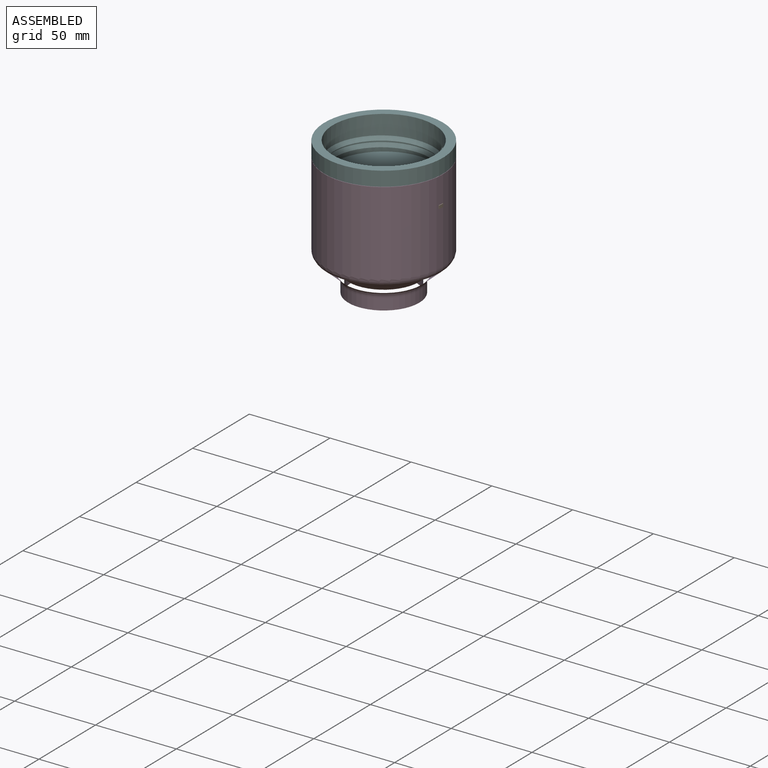
[diagram: assembled view]
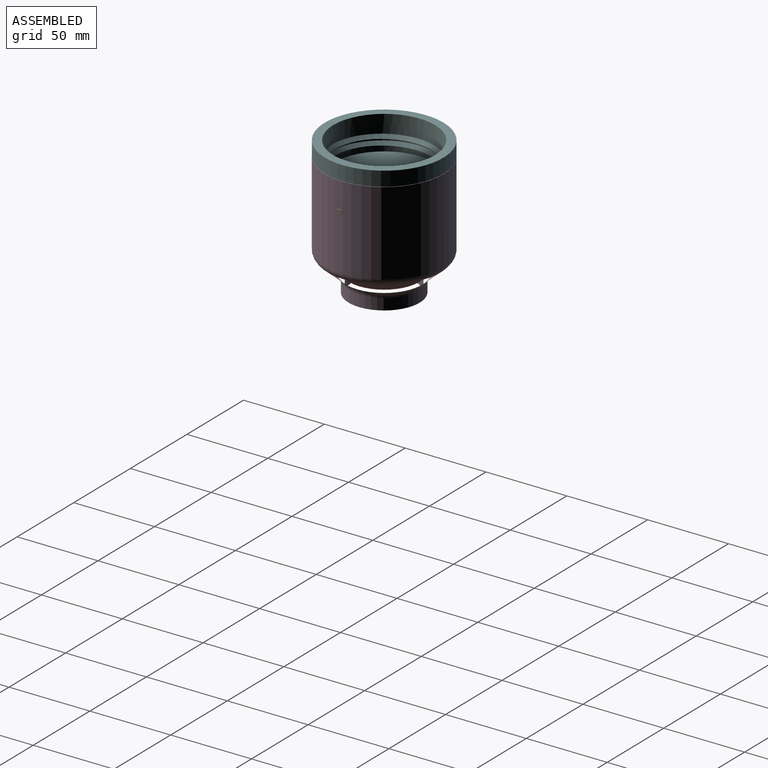
[diagram: assembled view, second angle]
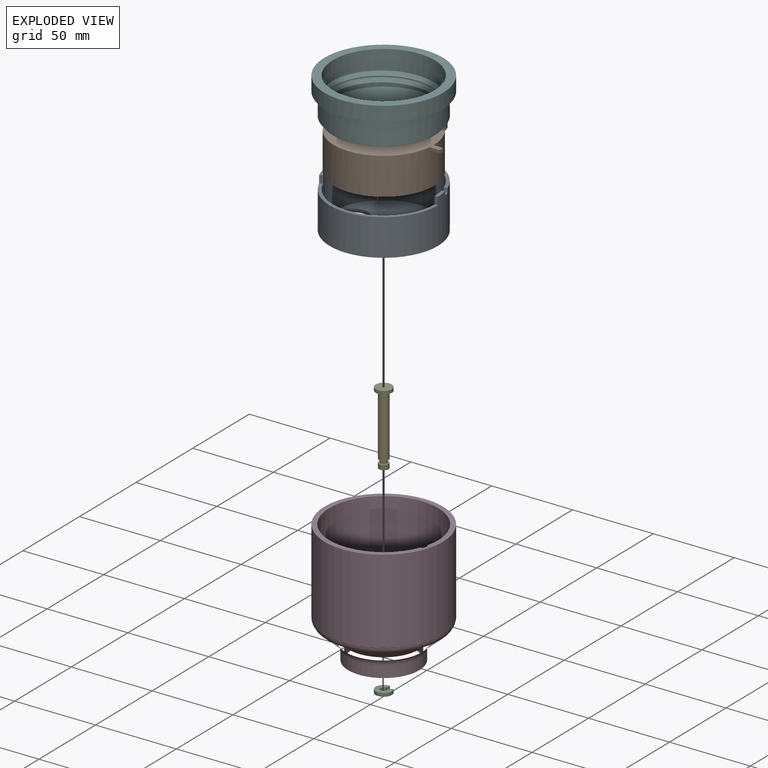
[diagram: exploded view]
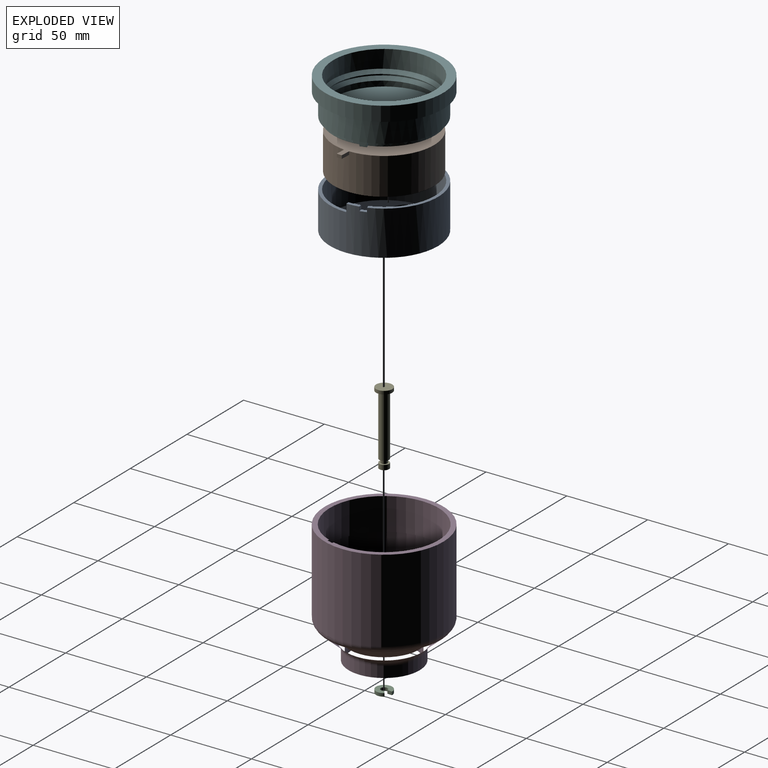
[diagram: exploded view, second angle]
ASSEMBLY  parts=6 mates=5
PART A: 18 faces, bbox 67x67x27.5 mm
  f0: cylinder r=31.5mm len=63mm, axis (0,0,-1), area 4613.4mm2, adj f1,f2,f5,f6,f9,f10,f11,f12
  f1: plane 7.54x2.81mm, normal (0,0,1), area 14.7mm2, adj f0,f3,f9,f15
  f2: plane 13.09x4.5mm, normal (0,0,1), area 26.1mm2, adj f0,f3,f12,f16
  f3: cylinder r=33.5mm len=67mm, axis (0,0,-1), area 5327.3mm2, adj f1,f2,f4,f5,f9,f10,f11,f12
  f4: plane 67x67mm, normal (0,0,-1), area 3181.3mm2, adj f3,f7,f8
  f5: plane 64.73x29.66mm, normal (0,0,1), area 173.6mm2, adj f0,f3,f10,f13
  f6: plane 63x63mm, normal (0,0,1), area 2772.9mm2, adj f0,f7,f8
  f7: cylinder r=3.1mm len=6.2mm, axis (0,0,-1), area 39mm2, adj f4,f6
  f8: cylinder r=10mm len=20mm, axis (0,0,1), area 125.7mm2, adj f4,f6
  f9: plane 2.5x1.95mm, normal (0.22,-0.97,0), area 5mm2, adj f0,f1,f3,f11
  f10: plane 2.5x1.88mm, normal (-0.34,0.94,0), area 5mm2, adj f0,f3,f5,f11
  f11: plane 4.37x3.04mm, normal (0,0,1), area 7.9mm2, adj f0,f3,f9,f10
  f12: plane 2.5x2mm, normal (0,-1,0), area 5mm2, adj f0,f2,f3,f14
  f13: plane 2.5x1.99mm, normal (0.12,0.99,0), area 5mm2, adj f0,f3,f5,f14
  f14: plane 4.08x2.23mm, normal (0,0,1), area 7.9mm2, adj f0,f3,f12,f13
  f15: plane 4.8x2mm, normal (0,1,0), area 9.6mm2, adj f0,f1,f3,f17
  f16: plane 4.8x1.84mm, normal (-0.39,0.92,0), area 9.6mm2, adj f0,f2,f3,f17
  f17: plane 64.34x33.5mm, normal (0,0,1), area 178.1mm2, adj f0,f3,f15,f16
PART B: 9 faces, bbox 68x62x22.9 mm
  f0: cylinder r=31mm len=62mm, axis (0,0,-1), area 4448.1mm2, adj f2,f3,f4,f6,f7
  f1: cylinder r=10mm len=22.87mm, axis (0,0,-1), area 1437mm2, adj f2,f3
  f2: plane 68x62mm, normal (0,0,1), area 2695.2mm2, adj f0,f1,f4,f5,f6,f8
  f3: plane 62x62mm, normal (0,0,-1), area 2675.7mm2, adj f0,f1,f8
  f4: plane 6x2mm, normal (-0.05,-1,0), area 12mm2, adj f0,f2,f5,f7
  f5: cylinder r=37mm len=3.24mm, axis (0,0,1), area 6.5mm2, adj f2,f4,f6,f7
  f6: plane 6x2mm, normal (0.05,1,0), area 12mm2, adj f0,f2,f5,f7
  f7: plane 6.17x3.55mm, normal (0,0,-1), area 19.5mm2, adj f0,f4,f5,f6
  f8: cylinder r=3.05mm len=22.87mm, axis (0,0,-1), area 438.3mm2, adj f2,f3
PART C: 6 faces, bbox 10x9.8x2 mm
  f0: plane 2.76x2mm, normal (-0.95,0.31,0), area 5.8mm2, adj f1,f3,f4,f5
  f1: cylinder r=2.1mm len=4.2mm, axis (0,0,-1), area 22.7mm2, adj f0,f2,f4,f5
  f2: plane 2.46x2mm, normal (0.85,0.53,0), area 5.8mm2, adj f1,f3,f4,f5
  f3: cylinder r=5mm len=10mm, axis (0,0,-1), area 54.1mm2, adj f0,f2,f4,f5
  f4: plane 10x9.75mm, normal (0,0,1), area 55.7mm2, adj f0,f1,f2,f3
  f5: plane 10x9.75mm, normal (0,0,-1), area 55.7mm2, adj f0,f1,f2,f3
PART D: 53 faces, bbox 79.4x79.4x75.8 mm
  f0: cylinder r=34.7mm len=69.4mm, axis (0,0,1), area 6624.8mm2, adj f3,f13,f25,f26,f28,f29,f30,f32
  f1: plane 29.19x4.23mm, normal (0,0,1), area 88.7mm2, adj f14,f19,f21,f29,f30,f32,f47,f48
  f2: plane 27.08x17.73mm, normal (0,0,1), area 88.7mm2, adj f15,f16,f21,f35,f36,f38,f51,f52
  f3: torus R=29.7mm, axis (0,0,1), area 867.8mm2, adj f0,f12,f31,f33,f34,f37,f39,f40
  f4: cylinder r=36.7mm len=73.4mm, axis (0,0,1), area 11906.6mm2, adj f5,f13
  f5: torus R=31.7mm, axis (0,0,1), area 969mm2, adj f4,f6
  f6: cone r=34.98mm half-angle=48.9deg, axis (0,0,1), area 2756.2mm2, adj f5,f7
  f7: torus R=27mm, axis (0,0,1), area 606mm2, adj f6,f8
  f8: cylinder r=22mm len=44mm, axis (0,0,1), area 942mm2, adj f7,f9
  f9: plane 44x44mm, normal (0,0,-1), area 263.9mm2, adj f8,f10
  f10: cylinder r=20mm len=40mm, axis (0,0,1), area 970.7mm2, adj f9,f11
  f11: torus R=25mm, axis (0,0,1), area 552.4mm2, adj f10,f12
  f12: cone r=32.98mm half-angle=48.9deg, axis (0,0,1), area 2568.4mm2, adj f3,f11
  f13: plane 73.4x73.4mm, normal (0,0,1), area 659.6mm2, adj f0,f4,f26,f27,f28
  f14: plane 28.19x10.09mm, normal (-1,0,0), area 281.8mm2, adj f1,f20,f29,f31,f33,f47
  f15: plane 24.38x14.07mm, normal (-0.5,0.87,0), area 281.4mm2, adj f2,f20,f38,f39,f40,f51
  f16: plane 24.42x14.1mm, normal (0.5,-0.87,0), area 281.8mm2, adj f2,f20,f35,f37,f39,f52
  f17: plane 24.38x14.07mm, normal (-0.5,-0.87,0), area 281.4mm2, adj f20,f23,f44,f45,f46,f49
  f18: plane 24.42x14.1mm, normal (0.5,0.87,0), area 281.8mm2, adj f20,f23,f41,f43,f45,f50
  f19: plane 28.15x10.09mm, normal (1,0,0), area 281.4mm2, adj f1,f20,f32,f33,f34,f48
  f20: plane 58.62x50.85mm, normal (0,0,-1), area 309.9mm2, adj f14,f15,f16,f17,f18,f19,f21,f22
  f21: cylinder r=5mm len=11mm, axis (0,0,1), area 214.4mm2, adj f1,f2,f20,f23,f24,f47,f48,f49
  f22: cylinder r=3mm len=11mm, axis (0,0,1), area 207.3mm2, adj f20,f24
  f23: plane 27.04x17.74mm, normal (0,0,1), area 88.7mm2, adj f17,f18,f21,f41,f42,f44,f49,f50
  f24: plane 10x10mm, normal (0,0,1), area 50.3mm2, adj f21,f22
  f25: plane 69.4x69.4mm, normal (0,0,-1), area 211mm2, adj f0,f26,f27,f28
  f26: plane 20x0.93mm, normal (0.36,0.93,0), area 20mm2, adj f0,f13,f25,f27
  f27: cylinder r=33.7mm len=67.4mm, axis (0,0,1), area 4158.4mm2, adj f13,f25,f26,f28
  f28: plane 20x0.97mm, normal (-0.25,-0.97,0), area 20mm2, adj f0,f13,f25,f27
  f29: cylinder r=1mm len=9.72mm, axis (0,0,1), area 15mm2, adj f0,f1,f14,f30,f31
  f30: torus R=33.7mm, axis (0,0,1), area 6.5mm2, adj f0,f1,f29,f32
  f31: bspline ~3.34x1.96mm, area 3.7mm2, adj f3,f14,f29,f33
  f32: cylinder r=1mm len=9.72mm, axis (0,0,1), area 14.9mm2, adj f0,f1,f19,f30,f34
  f33: torus R=32.99mm, axis (0,0,1), area 8.1mm2, adj f3,f14,f19,f20,f31,f34
  f34: bspline ~3.86x1.95mm, area 3.7mm2, adj f3,f19,f32,f33
  f35: cylinder r=1mm len=9.72mm, axis (0,0,1), area 15mm2, adj f0,f2,f16,f36,f37
  f36: torus R=33.7mm, axis (0,0,1), area 6.5mm2, adj f0,f2,f35,f38
  f37: bspline ~3.87x1.87mm, area 3.7mm2, adj f3,f16,f35,f39
  f38: cylinder r=1mm len=9.72mm, axis (0,0,1), area 14.9mm2, adj f0,f2,f15,f36,f40
  f39: torus R=32.99mm, axis (0,0,1), area 8.1mm2, adj f3,f15,f16,f20,f37,f40
  f40: bspline ~3.86x2.16mm, area 3.7mm2, adj f3,f15,f38,f39
  f41: cylinder r=1mm len=9.72mm, axis (0,0,1), area 15mm2, adj f0,f18,f23,f42,f43
  f42: torus R=33.7mm, axis (0,0,1), area 6.5mm2, adj f0,f23,f41,f44
  f43: bspline ~3.34x2.16mm, area 3.7mm2, adj f3,f18,f41,f45
  f44: cylinder r=1mm len=9.72mm, axis (0,0,1), area 14.9mm2, adj f0,f17,f23,f42,f46
  f45: torus R=32.99mm, axis (0,0,1), area 8.1mm2, adj f3,f17,f18,f20,f43,f46
  f46: bspline ~3.86x1.87mm, area 3.7mm2, adj f3,f17,f44,f45
  f47: cylinder r=1mm len=10mm, axis (0,0,1), area 11.2mm2, adj f1,f14,f20,f21
  f48: cylinder r=1mm len=10mm, axis (0,0,1), area 11.4mm2, adj f1,f19,f20,f21
  f49: cylinder r=1mm len=10mm, axis (0,0,1), area 11.4mm2, adj f17,f20,f21,f23
  f50: cylinder r=1mm len=10mm, axis (0,0,1), area 11.2mm2, adj f18,f20,f21,f23
  f51: cylinder r=1mm len=10mm, axis (0,0,1), area 11.4mm2, adj f2,f15,f20,f21
  f52: cylinder r=1mm len=10mm, axis (0,0,1), area 11.2mm2, adj f2,f16,f20,f21
PART E: 9 faces, bbox 10x10x45.3 mm
  f0: cylinder r=5mm len=10mm, axis (0,0,-1), area 62.8mm2, adj f1,f2
  f1: plane 10x10mm, normal (0,0,1), area 78.5mm2, adj f0
  f2: plane 10x10mm, normal (0,0,-1), area 50.3mm2, adj f0,f3
  f3: cylinder r=3mm len=38.1mm, axis (0,0,1), area 718.2mm2, adj f2,f4
  f4: plane 6x6mm, normal (0,0,-1), area 15.7mm2, adj f3,f5
  f5: cylinder r=2mm len=4mm, axis (0,0,1), area 27.6mm2, adj f4,f8
  f6: cylinder r=3mm len=6mm, axis (0,0,1), area 56.5mm2, adj f7,f8
  f7: plane 6x6mm, normal (0,0,-1), area 28.3mm2, adj f6
  f8: plane 6x6mm, normal (0,0,1), area 15.7mm2, adj f5,f6
PART F: 29 faces, bbox 73.4x73.4x25.2 mm
  f0: plane 63.04x63.03mm, normal (0,0,-1), area 2774.8mm2, adj f3,f13,f15,f19,f25,f27
  f1: cylinder r=33.5mm len=67mm, axis (0,0,-1), area 2903.8mm2, adj f16,f17,f18,f20,f21,f22,f24,f26
  f2: plane 63x63mm, normal (0,0,1), area 2724.5mm2, adj f4,f6,f13
  f3: cylinder r=3mm len=6mm, axis (0,0,-1), area 41.5mm2, adj f0,f5
  f4: cylinder r=5mm len=10mm, axis (0,0,1), area 62.8mm2, adj f2,f5
  f5: plane 10x10mm, normal (0,0,1), area 50.3mm2, adj f3,f4
  f6: cylinder r=31.5mm len=63mm, axis (0,0,-1), area 660.8mm2, adj f2,f7,f10,f11,f12
  f7: cylinder r=31.5mm len=63mm, axis (0,0,-1), area 312.4mm2, adj f6,f8,f11,f12
  f8: cylinder r=31.5mm len=63mm, axis (0,0,-1), area 2152.6mm2, adj f7,f9,f11,f14
  f9: plane 2.17x1.56mm, normal (0,1,0), area 1.7mm2, adj f8,f11,f12
  f10: plane 2.18x1.27mm, normal (-0.59,0.81,0), area 1.7mm2, adj f6,f11,f12
  f11: bspline ~72.75x63mm, area 1237.4mm2, adj f6,f7,f8,f9,f10,f12
  f12: bspline ~72.75x63mm, area 722.8mm2, adj f6,f7,f9,f10,f11
  f13: cylinder r=10mm len=20mm, axis (0,0,1), area 263.9mm2, adj f0,f2
  f14: plane 73.4x73.4mm, normal (0,0,1), area 1114.1mm2, adj f8,f23
  f15: cylinder r=31.5mm len=3.23mm, axis (0,0,1), area 0mm2, adj f0,f17,f18
  f16: plane 2.5x1.76mm, normal (0.88,0.47,0), area 5mm2, adj f1,f18,f27,f28
  f17: plane 2.5x1.64mm, normal (-0.82,-0.57,0), area 5mm2, adj f1,f15,f18,f25,f26
  f18: plane 4.38x3.75mm, normal (0,0,-1), area 7.8mm2, adj f1,f15,f16,f17
  f19: cylinder r=31.5mm len=2.97mm, axis (0,0,1), area 0mm2, adj f0,f20,f22
  f20: plane 2.5x1.49mm, normal (-0.67,-0.74,0), area 5mm2, adj f1,f19,f22,f25,f26
  f21: plane 2.5x1.64mm, normal (0.57,0.82,0), area 5mm2, adj f1,f22,f27,f28
  f22: plane 4.3x4mm, normal (0,0,-1), area 7.8mm2, adj f1,f19,f20,f21
  f23: cylinder r=36.7mm len=73.4mm, axis (0,0,1), area 2075.3mm2, adj f14,f24
  f24: plane 73.4x73.4mm, normal (0,0,-1), area 705.7mm2, adj f1,f23
  f25: cylinder r=31.5mm len=57.3mm, axis (0,0,-1), area 265.4mm2, adj f0,f17,f20,f26
  f26: plane 60.94x58.43mm, normal (0,0,-1), area 219.1mm2, adj f1,f17,f20,f25
  f27: extruded ~49.57x46.33mm, area 210.5mm2, adj f0,f16,f21,f28
  f28: plane 52.72x49.28mm, normal (0,0,-1), area 173.7mm2, adj f1,f16,f21,f27
PLACE A rot(axis=(0,0,-1),180deg) t=(-0.11,-38,-42.49)mm fixed
PLACE B rot(axis=(0,0,1),0deg) t=(-0.11,-38,-40.49)mm
PLACE C rot(axis=(0,0,-1),35.1deg) t=(-0.11,-38,-55.39)mm
PLACE D rot(axis=(0,0,1),0deg) t=(-0.11,-38,-1.49)mm
PLACE E rot(axis=(0,0,-1),35.1deg) t=(-0.11,-38,-15.29)mm
PLACE F rot(axis=(0,0,1),54.9deg) t=(-0.11,-38,-17.49)mm
MATE revolute F.f4 <-> E.f5  axis (0,0,1) through (-0.11,-38,-15.29)mm
MATE revolute E.f5 <-> C.f1  axis (0,0,-1) through (-0.11,-38,-53.39)mm
MATE revolute A.f7 <-> B.f8  axis (0,0,1) through (-0.11,-38,-40.49)mm
MATE revolute A.f0 <-> F.f1  axis (0,0,1) through (-0.11,-38,-14.99)mm
MATE revolute D.f22 <-> A.f7  axis (0,0,1) through (-0.11,-38,-42.49)mm
